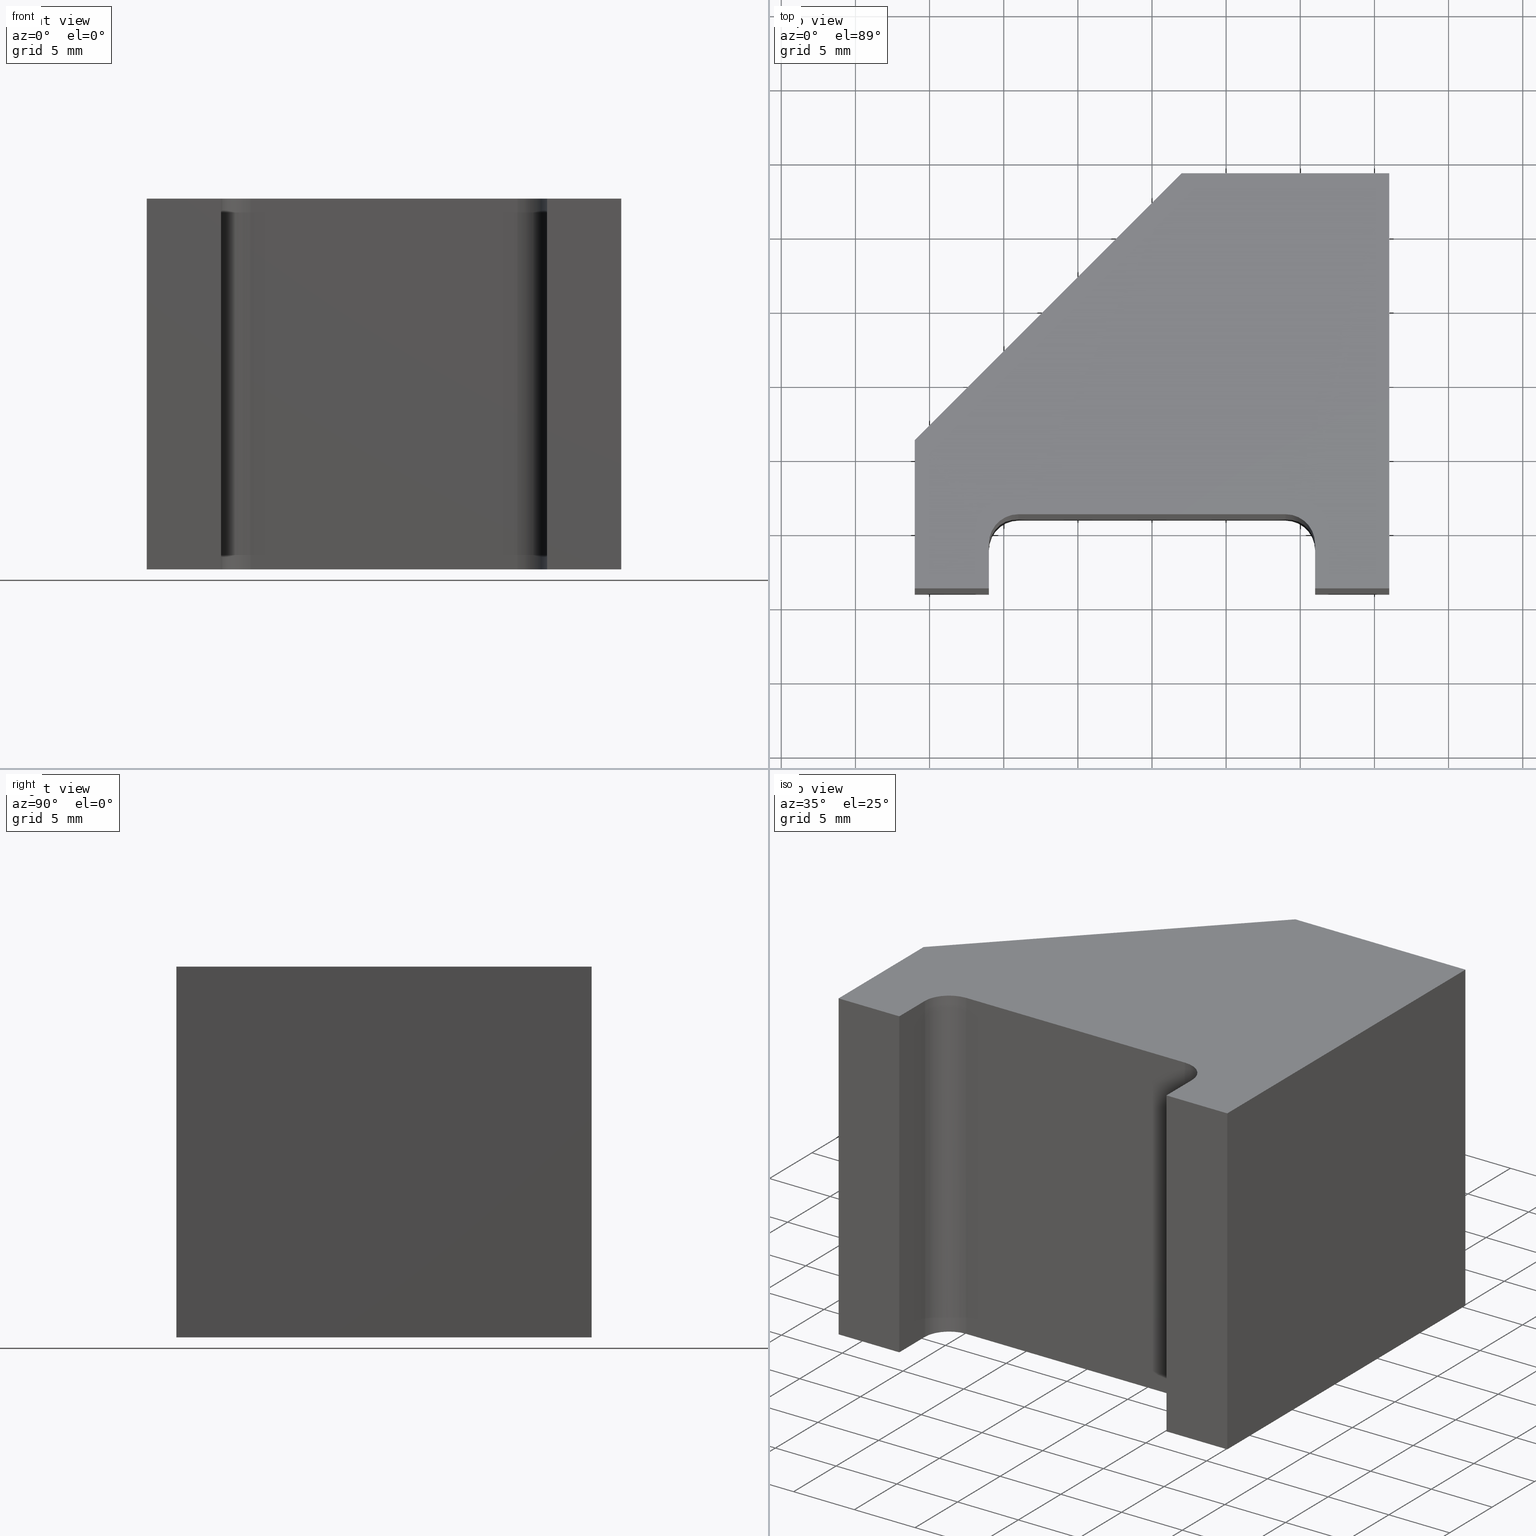
[diagram: canonical four-view strip — front | top / right | iso, engineering-drawing reading convention]
A machine part, canonical four-view strip (front | top / right | iso — engineering-drawing reading convention). The complete STEP part file that produces these views, byte-faithful:
ISO-10303-21;
HEADER;
/* Generated by software containing ST-Developer
 * from STEP Tools, Inc. (www.steptools.com) 
 */

FILE_DESCRIPTION(
/* description */ (''),
/* implementation_level */ '2;1');

FILE_NAME(
/* name */ 'E_3_01_06_06_00_WKZ-0163.stp',
/* time_stamp */ '2025-11-24T12:36:09+01:00',
/* author */ ('d.fischer'),
/* organization */ (''),
/* preprocessor_version */ 'ST-DEVELOPER v20',
/* originating_system */ 'Autodesk Inventor 2025',
/* authorisation */ '');

FILE_SCHEMA (('AUTOMOTIVE_DESIGN { 1 0 10303 214 3 1 1 }'));
ENDSEC;

DATA;
#10=MECHANICAL_DESIGN_GEOMETRIC_PRESENTATION_REPRESENTATION('',(#14,#15),
#428);
#11=SHAPE_REPRESENTATION_RELATIONSHIP('SRR','None',#435,#12);
#12=ADVANCED_BREP_SHAPE_REPRESENTATION('',(#13),#427);
#13=MANIFOLD_SOLID_BREP('Volumenk\X\F6rper1',#251);
#14=STYLED_ITEM('',(#445),#249);
#15=STYLED_ITEM('',(#444),#13);
#16=CYLINDRICAL_SURFACE('',#278,2.);
#17=CYLINDRICAL_SURFACE('',#281,2.);
#18=FACE_OUTER_BOUND('',#31,.T.);
#19=FACE_OUTER_BOUND('',#32,.T.);
#20=FACE_OUTER_BOUND('',#33,.T.);
#21=FACE_OUTER_BOUND('',#34,.T.);
#22=FACE_OUTER_BOUND('',#35,.T.);
#23=FACE_OUTER_BOUND('',#36,.T.);
#24=FACE_OUTER_BOUND('',#37,.T.);
#25=FACE_OUTER_BOUND('',#38,.T.);
#26=FACE_OUTER_BOUND('',#39,.T.);
#27=FACE_OUTER_BOUND('',#40,.T.);
#28=FACE_OUTER_BOUND('',#41,.T.);
#29=FACE_OUTER_BOUND('',#42,.T.);
#30=FACE_OUTER_BOUND('',#43,.T.);
#31=EDGE_LOOP('',(#161,#162,#163,#164,#165,#166,#167,#168,#169,#170,#171));
#32=EDGE_LOOP('',(#172,#173,#174,#175));
#33=EDGE_LOOP('',(#176,#177,#178,#179));
#34=EDGE_LOOP('',(#180,#181,#182,#183));
#35=EDGE_LOOP('',(#184,#185,#186,#187));
#36=EDGE_LOOP('',(#188,#189,#190,#191));
#37=EDGE_LOOP('',(#192,#193,#194,#195));
#38=EDGE_LOOP('',(#196,#197,#198,#199));
#39=EDGE_LOOP('',(#200,#201,#202,#203));
#40=EDGE_LOOP('',(#204,#205,#206,#207));
#41=EDGE_LOOP('',(#208,#209,#210,#211));
#42=EDGE_LOOP('',(#212,#213,#214,#215));
#43=EDGE_LOOP('',(#216,#217,#218,#219,#220,#221,#222,#223,#224,#225,#226));
#44=CIRCLE('',#275,2.);
#45=CIRCLE('',#276,2.);
#46=CIRCLE('',#279,2.);
#47=CIRCLE('',#282,2.);
#48=LINE('',#360,#77);
#49=LINE('',#362,#78);
#50=LINE('',#364,#79);
#51=LINE('',#368,#80);
#52=LINE('',#372,#81);
#53=LINE('',#374,#82);
#54=LINE('',#376,#83);
#55=LINE('',#378,#84);
#56=LINE('',#379,#85);
#57=LINE('',#383,#86);
#58=LINE('',#384,#87);
#59=LINE('',#385,#88);
#60=LINE('',#389,#89);
#61=LINE('',#392,#90);
#62=LINE('',#393,#91);
#63=LINE('',#397,#92);
#64=LINE('',#400,#93);
#65=LINE('',#401,#94);
#66=LINE('',#404,#95);
#67=LINE('',#405,#96);
#68=LINE('',#408,#97);
#69=LINE('',#409,#98);
#70=LINE('',#412,#99);
#71=LINE('',#413,#100);
#72=LINE('',#416,#101);
#73=LINE('',#417,#102);
#74=LINE('',#420,#103);
#75=LINE('',#421,#104);
#76=LINE('',#423,#105);
#77=VECTOR('',#295,10.);
#78=VECTOR('',#296,10.);
#79=VECTOR('',#297,10.);
#80=VECTOR('',#300,10.);
#81=VECTOR('',#303,10.);
#82=VECTOR('',#304,10.);
#83=VECTOR('',#305,10.);
#84=VECTOR('',#306,10.);
#85=VECTOR('',#307,10.);
#86=VECTOR('',#310,10.);
#87=VECTOR('',#311,10.);
#88=VECTOR('',#312,10.);
#89=VECTOR('',#317,10.);
#90=VECTOR('',#320,10.);
#91=VECTOR('',#321,10.);
#92=VECTOR('',#326,10.);
#93=VECTOR('',#329,10.);
#94=VECTOR('',#330,10.);
#95=VECTOR('',#333,10.);
#96=VECTOR('',#334,10.);
#97=VECTOR('',#337,10.);
#98=VECTOR('',#338,10.);
#99=VECTOR('',#341,10.);
#100=VECTOR('',#342,10.);
#101=VECTOR('',#345,10.);
#102=VECTOR('',#346,10.);
#103=VECTOR('',#349,10.);
#104=VECTOR('',#350,10.);
#105=VECTOR('',#353,10.);
#106=VERTEX_POINT('',#358);
#107=VERTEX_POINT('',#359);
#108=VERTEX_POINT('',#361);
#109=VERTEX_POINT('',#363);
#110=VERTEX_POINT('',#365);
#111=VERTEX_POINT('',#367);
#112=VERTEX_POINT('',#369);
#113=VERTEX_POINT('',#371);
#114=VERTEX_POINT('',#373);
#115=VERTEX_POINT('',#375);
#116=VERTEX_POINT('',#377);
#117=VERTEX_POINT('',#381);
#118=VERTEX_POINT('',#382);
#119=VERTEX_POINT('',#387);
#120=VERTEX_POINT('',#391);
#121=VERTEX_POINT('',#395);
#122=VERTEX_POINT('',#399);
#123=VERTEX_POINT('',#403);
#124=VERTEX_POINT('',#407);
#125=VERTEX_POINT('',#411);
#126=VERTEX_POINT('',#415);
#127=VERTEX_POINT('',#419);
#128=EDGE_CURVE('',#106,#107,#48,.T.);
#129=EDGE_CURVE('',#108,#106,#49,.T.);
#130=EDGE_CURVE('',#109,#108,#50,.T.);
#131=EDGE_CURVE('',#110,#109,#44,.T.);
#132=EDGE_CURVE('',#111,#110,#51,.T.);
#133=EDGE_CURVE('',#112,#111,#45,.T.);
#134=EDGE_CURVE('',#113,#112,#52,.T.);
#135=EDGE_CURVE('',#114,#113,#53,.T.);
#136=EDGE_CURVE('',#115,#114,#54,.T.);
#137=EDGE_CURVE('',#116,#115,#55,.T.);
#138=EDGE_CURVE('',#107,#116,#56,.T.);
#139=EDGE_CURVE('',#117,#118,#57,.T.);
#140=EDGE_CURVE('',#118,#109,#58,.T.);
#141=EDGE_CURVE('',#117,#108,#59,.T.);
#142=EDGE_CURVE('',#118,#119,#46,.T.);
#143=EDGE_CURVE('',#119,#110,#60,.T.);
#144=EDGE_CURVE('',#119,#120,#61,.T.);
#145=EDGE_CURVE('',#120,#111,#62,.T.);
#146=EDGE_CURVE('',#120,#121,#47,.T.);
#147=EDGE_CURVE('',#121,#112,#63,.T.);
#148=EDGE_CURVE('',#121,#122,#64,.T.);
#149=EDGE_CURVE('',#122,#113,#65,.T.);
#150=EDGE_CURVE('',#122,#123,#66,.T.);
#151=EDGE_CURVE('',#123,#114,#67,.T.);
#152=EDGE_CURVE('',#123,#124,#68,.T.);
#153=EDGE_CURVE('',#124,#115,#69,.T.);
#154=EDGE_CURVE('',#124,#125,#70,.T.);
#155=EDGE_CURVE('',#125,#116,#71,.T.);
#156=EDGE_CURVE('',#125,#126,#72,.T.);
#157=EDGE_CURVE('',#126,#107,#73,.T.);
#158=EDGE_CURVE('',#126,#127,#74,.T.);
#159=EDGE_CURVE('',#106,#127,#75,.T.);
#160=EDGE_CURVE('',#127,#117,#76,.T.);
#161=ORIENTED_EDGE('',*,*,#128,.F.);
#162=ORIENTED_EDGE('',*,*,#129,.F.);
#163=ORIENTED_EDGE('',*,*,#130,.F.);
#164=ORIENTED_EDGE('',*,*,#131,.F.);
#165=ORIENTED_EDGE('',*,*,#132,.F.);
#166=ORIENTED_EDGE('',*,*,#133,.F.);
#167=ORIENTED_EDGE('',*,*,#134,.F.);
#168=ORIENTED_EDGE('',*,*,#135,.F.);
#169=ORIENTED_EDGE('',*,*,#136,.F.);
#170=ORIENTED_EDGE('',*,*,#137,.F.);
#171=ORIENTED_EDGE('',*,*,#138,.F.);
#172=ORIENTED_EDGE('',*,*,#139,.T.);
#173=ORIENTED_EDGE('',*,*,#140,.T.);
#174=ORIENTED_EDGE('',*,*,#130,.T.);
#175=ORIENTED_EDGE('',*,*,#141,.F.);
#176=ORIENTED_EDGE('',*,*,#142,.T.);
#177=ORIENTED_EDGE('',*,*,#143,.T.);
#178=ORIENTED_EDGE('',*,*,#131,.T.);
#179=ORIENTED_EDGE('',*,*,#140,.F.);
#180=ORIENTED_EDGE('',*,*,#144,.T.);
#181=ORIENTED_EDGE('',*,*,#145,.T.);
#182=ORIENTED_EDGE('',*,*,#132,.T.);
#183=ORIENTED_EDGE('',*,*,#143,.F.);
#184=ORIENTED_EDGE('',*,*,#146,.T.);
#185=ORIENTED_EDGE('',*,*,#147,.T.);
#186=ORIENTED_EDGE('',*,*,#133,.T.);
#187=ORIENTED_EDGE('',*,*,#145,.F.);
#188=ORIENTED_EDGE('',*,*,#148,.T.);
#189=ORIENTED_EDGE('',*,*,#149,.T.);
#190=ORIENTED_EDGE('',*,*,#134,.T.);
#191=ORIENTED_EDGE('',*,*,#147,.F.);
#192=ORIENTED_EDGE('',*,*,#150,.T.);
#193=ORIENTED_EDGE('',*,*,#151,.T.);
#194=ORIENTED_EDGE('',*,*,#135,.T.);
#195=ORIENTED_EDGE('',*,*,#149,.F.);
#196=ORIENTED_EDGE('',*,*,#152,.T.);
#197=ORIENTED_EDGE('',*,*,#153,.T.);
#198=ORIENTED_EDGE('',*,*,#136,.T.);
#199=ORIENTED_EDGE('',*,*,#151,.F.);
#200=ORIENTED_EDGE('',*,*,#154,.T.);
#201=ORIENTED_EDGE('',*,*,#155,.T.);
#202=ORIENTED_EDGE('',*,*,#137,.T.);
#203=ORIENTED_EDGE('',*,*,#153,.F.);
#204=ORIENTED_EDGE('',*,*,#156,.T.);
#205=ORIENTED_EDGE('',*,*,#157,.T.);
#206=ORIENTED_EDGE('',*,*,#138,.T.);
#207=ORIENTED_EDGE('',*,*,#155,.F.);
#208=ORIENTED_EDGE('',*,*,#158,.T.);
#209=ORIENTED_EDGE('',*,*,#159,.F.);
#210=ORIENTED_EDGE('',*,*,#128,.T.);
#211=ORIENTED_EDGE('',*,*,#157,.F.);
#212=ORIENTED_EDGE('',*,*,#160,.T.);
#213=ORIENTED_EDGE('',*,*,#141,.T.);
#214=ORIENTED_EDGE('',*,*,#129,.T.);
#215=ORIENTED_EDGE('',*,*,#159,.T.);
#216=ORIENTED_EDGE('',*,*,#139,.F.);
#217=ORIENTED_EDGE('',*,*,#160,.F.);
#218=ORIENTED_EDGE('',*,*,#158,.F.);
#219=ORIENTED_EDGE('',*,*,#156,.F.);
#220=ORIENTED_EDGE('',*,*,#154,.F.);
#221=ORIENTED_EDGE('',*,*,#152,.F.);
#222=ORIENTED_EDGE('',*,*,#150,.F.);
#223=ORIENTED_EDGE('',*,*,#148,.F.);
#224=ORIENTED_EDGE('',*,*,#146,.F.);
#225=ORIENTED_EDGE('',*,*,#144,.F.);
#226=ORIENTED_EDGE('',*,*,#142,.F.);
#227=PLANE('',#274);
#228=PLANE('',#277);
#229=PLANE('',#280);
#230=PLANE('',#283);
#231=PLANE('',#284);
#232=PLANE('',#285);
#233=PLANE('',#286);
#234=PLANE('',#287);
#235=PLANE('',#288);
#236=PLANE('',#289);
#237=PLANE('',#290);
#238=ADVANCED_FACE('',(#18),#227,.F.);
#239=ADVANCED_FACE('',(#19),#228,.T.);
#240=ADVANCED_FACE('',(#20),#16,.F.);
#241=ADVANCED_FACE('',(#21),#229,.T.);
#242=ADVANCED_FACE('',(#22),#17,.F.);
#243=ADVANCED_FACE('',(#23),#230,.T.);
#244=ADVANCED_FACE('',(#24),#231,.T.);
#245=ADVANCED_FACE('',(#25),#232,.T.);
#246=ADVANCED_FACE('',(#26),#233,.T.);
#247=ADVANCED_FACE('',(#27),#234,.T.);
#248=ADVANCED_FACE('',(#28),#235,.T.);
#249=ADVANCED_FACE('',(#29),#236,.T.);
#250=ADVANCED_FACE('',(#30),#237,.T.);
#251=CLOSED_SHELL('',(#238,#239,#240,#241,#242,#243,#244,#245,#246,#247,
#248,#249,#250));
#252=DERIVED_UNIT_ELEMENT(#255,1.);
#253=DERIVED_UNIT_ELEMENT(#430,-3.);
#254=DIMENSIONAL_EXPONENTS(0.,1.,0.,0.,0.,0.,0.);
#255=(
CONVERSION_BASED_UNIT('gram',#257)
MASS_UNIT()
NAMED_UNIT(#254)
);
#256=(
MASS_UNIT()
NAMED_UNIT(*)
SI_UNIT(.KILO.,.GRAM.)
);
#257=MASS_MEASURE_WITH_UNIT(MASS_MEASURE(0.001),#256);
#258=DERIVED_UNIT((#252,#253));
#259=MEASURE_REPRESENTATION_ITEM('density measure',
POSITIVE_RATIO_MEASURE(8.03),#258);
#260=PROPERTY_DEFINITION_REPRESENTATION(#265,#262);
#261=PROPERTY_DEFINITION_REPRESENTATION(#266,#263);
#262=REPRESENTATION('material name',(#264),#427);
#263=REPRESENTATION('density',(#259),#427);
#264=DESCRIPTIVE_REPRESENTATION_ITEM('1.4301','1.4301');
#265=PROPERTY_DEFINITION('material property','material name',#437);
#266=PROPERTY_DEFINITION('material property','density of part',#437);
#267=DATE_TIME_ROLE('creation_date');
#268=APPLIED_DATE_AND_TIME_ASSIGNMENT(#269,#267,(#437));
#269=DATE_AND_TIME(#270,#271);
#270=CALENDAR_DATE(2011,19,10);
#271=LOCAL_TIME(0,0,0.,#272);
#272=COORDINATED_UNIVERSAL_TIME_OFFSET(0,0,.BEHIND.);
#273=AXIS2_PLACEMENT_3D('',#356,#291,#292);
#274=AXIS2_PLACEMENT_3D('',#357,#293,#294);
#275=AXIS2_PLACEMENT_3D('',#366,#298,#299);
#276=AXIS2_PLACEMENT_3D('',#370,#301,#302);
#277=AXIS2_PLACEMENT_3D('',#380,#308,#309);
#278=AXIS2_PLACEMENT_3D('',#386,#313,#314);
#279=AXIS2_PLACEMENT_3D('',#388,#315,#316);
#280=AXIS2_PLACEMENT_3D('',#390,#318,#319);
#281=AXIS2_PLACEMENT_3D('',#394,#322,#323);
#282=AXIS2_PLACEMENT_3D('',#396,#324,#325);
#283=AXIS2_PLACEMENT_3D('',#398,#327,#328);
#284=AXIS2_PLACEMENT_3D('',#402,#331,#332);
#285=AXIS2_PLACEMENT_3D('',#406,#335,#336);
#286=AXIS2_PLACEMENT_3D('',#410,#339,#340);
#287=AXIS2_PLACEMENT_3D('',#414,#343,#344);
#288=AXIS2_PLACEMENT_3D('',#418,#347,#348);
#289=AXIS2_PLACEMENT_3D('',#422,#351,#352);
#290=AXIS2_PLACEMENT_3D('',#424,#354,#355);
#291=DIRECTION('axis',(0.,0.,1.));
#292=DIRECTION('refdir',(1.,0.,0.));
#293=DIRECTION('center_axis',(0.,0.,1.));
#294=DIRECTION('ref_axis',(1.,0.,0.));
#295=DIRECTION('',(1.58603289232165E-16,1.,0.));
#296=DIRECTION('',(1.,-4.44089209850062E-16,0.));
#297=DIRECTION('',(0.,-1.,0.));
#298=DIRECTION('center_axis',(0.,0.,-1.));
#299=DIRECTION('ref_axis',(1.,0.,0.));
#300=DIRECTION('',(1.,0.,0.));
#301=DIRECTION('center_axis',(0.,0.,-1.));
#302=DIRECTION('ref_axis',(1.11022302462516E-15,1.,0.));
#303=DIRECTION('',(0.,1.,0.));
#304=DIRECTION('',(1.,0.,0.));
#305=DIRECTION('',(-4.44089209850063E-16,-1.,0.));
#306=DIRECTION('',(-0.707106781186548,-0.707106781186547,0.));
#307=DIRECTION('',(-1.,3.1720657846433E-16,0.));
#308=DIRECTION('center_axis',(-1.,0.,0.));
#309=DIRECTION('ref_axis',(0.,0.,1.));
#310=DIRECTION('',(0.,1.,0.));
#311=DIRECTION('',(0.,0.,-1.));
#312=DIRECTION('',(0.,0.,-1.));
#313=DIRECTION('center_axis',(0.,0.,1.));
#314=DIRECTION('ref_axis',(1.,0.,0.));
#315=DIRECTION('center_axis',(0.,0.,1.));
#316=DIRECTION('ref_axis',(1.,0.,0.));
#317=DIRECTION('',(0.,0.,-1.));
#318=DIRECTION('center_axis',(0.,-1.,0.));
#319=DIRECTION('ref_axis',(0.,0.,-1.));
#320=DIRECTION('',(-1.,0.,0.));
#321=DIRECTION('',(0.,0.,-1.));
#322=DIRECTION('center_axis',(0.,0.,1.));
#323=DIRECTION('ref_axis',(1.11022302462516E-15,1.,0.));
#324=DIRECTION('center_axis',(0.,0.,1.));
#325=DIRECTION('ref_axis',(1.11022302462516E-15,1.,0.));
#326=DIRECTION('',(0.,0.,-1.));
#327=DIRECTION('center_axis',(1.,0.,0.));
#328=DIRECTION('ref_axis',(0.,0.,-1.));
#329=DIRECTION('',(0.,-1.,0.));
#330=DIRECTION('',(0.,0.,-1.));
#331=DIRECTION('center_axis',(0.,-1.,0.));
#332=DIRECTION('ref_axis',(0.,0.,-1.));
#333=DIRECTION('',(-1.,0.,0.));
#334=DIRECTION('',(0.,0.,-1.));
#335=DIRECTION('center_axis',(-1.,4.44089209850063E-16,0.));
#336=DIRECTION('ref_axis',(0.,0.,1.));
#337=DIRECTION('',(4.44089209850063E-16,1.,0.));
#338=DIRECTION('',(0.,0.,-1.));
#339=DIRECTION('center_axis',(-0.707106781186547,0.707106781186548,0.));
#340=DIRECTION('ref_axis',(0.,0.,1.));
#341=DIRECTION('',(0.707106781186548,0.707106781186547,0.));
#342=DIRECTION('',(0.,0.,-1.));
#343=DIRECTION('center_axis',(3.1720657846433E-16,1.,0.));
#344=DIRECTION('ref_axis',(0.,0.,1.));
#345=DIRECTION('',(1.,-3.1720657846433E-16,0.));
#346=DIRECTION('',(0.,0.,-1.));
#347=DIRECTION('center_axis',(1.,-1.58603289232165E-16,0.));
#348=DIRECTION('ref_axis',(0.,0.,-1.));
#349=DIRECTION('',(-1.58603289232165E-16,-1.,0.));
#350=DIRECTION('',(0.,0.,1.));
#351=DIRECTION('center_axis',(-4.44089209850062E-16,-1.,0.));
#352=DIRECTION('ref_axis',(0.,0.,-1.));
#353=DIRECTION('',(-1.,4.44089209850062E-16,0.));
#354=DIRECTION('center_axis',(0.,0.,1.));
#355=DIRECTION('ref_axis',(1.,0.,0.));
#356=CARTESIAN_POINT('',(0.,0.,0.));
#357=CARTESIAN_POINT('Origin',(2.00281157643988,-1.74119706031455,-12.5));
#358=CARTESIAN_POINT('',(16.,-14.,-12.5));
#359=CARTESIAN_POINT('',(16.,14.,-12.5));
#360=CARTESIAN_POINT('',(16.,14.,-12.5));
#361=CARTESIAN_POINT('',(11.,-14.,-12.5));
#362=CARTESIAN_POINT('',(16.,-14.,-12.5));
#363=CARTESIAN_POINT('',(11.,-11.,-12.5));
#364=CARTESIAN_POINT('',(11.,-14.,-12.5));
#365=CARTESIAN_POINT('',(9.,-9.,-12.5));
#366=CARTESIAN_POINT('Origin',(9.,-11.,-12.5));
#367=CARTESIAN_POINT('',(-9.,-9.,-12.5));
#368=CARTESIAN_POINT('',(9.,-9.,-12.5));
#369=CARTESIAN_POINT('',(-11.,-11.,-12.5));
#370=CARTESIAN_POINT('Origin',(-9.,-11.,-12.5));
#371=CARTESIAN_POINT('',(-11.,-14.,-12.5));
#372=CARTESIAN_POINT('',(-11.,-11.,-12.5));
#373=CARTESIAN_POINT('',(-16.,-14.,-12.5));
#374=CARTESIAN_POINT('',(-11.,-14.,-12.5));
#375=CARTESIAN_POINT('',(-16.,-4.,-12.5));
#376=CARTESIAN_POINT('',(-16.,-14.,-12.5));
#377=CARTESIAN_POINT('',(2.00000000000001,14.,-12.5));
#378=CARTESIAN_POINT('',(-16.,-4.,-12.5));
#379=CARTESIAN_POINT('',(2.00000000000001,14.,-12.5));
#380=CARTESIAN_POINT('Origin',(11.,-14.,0.));
#381=CARTESIAN_POINT('',(11.,-14.,12.5));
#382=CARTESIAN_POINT('',(11.,-11.,12.5));
#383=CARTESIAN_POINT('',(11.,-14.,12.5));
#384=CARTESIAN_POINT('',(11.,-11.,0.));
#385=CARTESIAN_POINT('',(11.,-14.,0.));
#386=CARTESIAN_POINT('Origin',(9.,-11.,0.));
#387=CARTESIAN_POINT('',(9.,-9.,12.5));
#388=CARTESIAN_POINT('Origin',(9.,-11.,12.5));
#389=CARTESIAN_POINT('',(9.,-9.,0.));
#390=CARTESIAN_POINT('Origin',(9.,-9.,0.));
#391=CARTESIAN_POINT('',(-9.,-9.,12.5));
#392=CARTESIAN_POINT('',(9.,-9.,12.5));
#393=CARTESIAN_POINT('',(-9.,-9.,0.));
#394=CARTESIAN_POINT('Origin',(-9.,-11.,0.));
#395=CARTESIAN_POINT('',(-11.,-11.,12.5));
#396=CARTESIAN_POINT('Origin',(-9.,-11.,12.5));
#397=CARTESIAN_POINT('',(-11.,-11.,0.));
#398=CARTESIAN_POINT('Origin',(-11.,-11.,0.));
#399=CARTESIAN_POINT('',(-11.,-14.,12.5));
#400=CARTESIAN_POINT('',(-11.,-11.,12.5));
#401=CARTESIAN_POINT('',(-11.,-14.,0.));
#402=CARTESIAN_POINT('Origin',(-11.,-14.,0.));
#403=CARTESIAN_POINT('',(-16.,-14.,12.5));
#404=CARTESIAN_POINT('',(-11.,-14.,12.5));
#405=CARTESIAN_POINT('',(-16.,-14.,0.));
#406=CARTESIAN_POINT('Origin',(-16.,-14.,0.));
#407=CARTESIAN_POINT('',(-16.,-4.,12.5));
#408=CARTESIAN_POINT('',(-16.,-14.,12.5));
#409=CARTESIAN_POINT('',(-16.,-4.,0.));
#410=CARTESIAN_POINT('Origin',(-16.,-4.,0.));
#411=CARTESIAN_POINT('',(2.00000000000001,14.,12.5));
#412=CARTESIAN_POINT('',(-16.,-4.,12.5));
#413=CARTESIAN_POINT('',(2.00000000000001,14.,0.));
#414=CARTESIAN_POINT('Origin',(2.00000000000001,14.,0.));
#415=CARTESIAN_POINT('',(16.,14.,12.5));
#416=CARTESIAN_POINT('',(2.00000000000001,14.,12.5));
#417=CARTESIAN_POINT('',(16.,14.,0.));
#418=CARTESIAN_POINT('Origin',(16.,14.,0.));
#419=CARTESIAN_POINT('',(16.,-14.,12.5));
#420=CARTESIAN_POINT('',(16.,14.,12.5));
#421=CARTESIAN_POINT('',(16.,-14.,0.));
#422=CARTESIAN_POINT('Origin',(16.,-14.,0.));
#423=CARTESIAN_POINT('',(16.,-14.,12.5));
#424=CARTESIAN_POINT('Origin',(2.00281157643988,-1.74119706031455,12.5));
#425=UNCERTAINTY_MEASURE_WITH_UNIT(LENGTH_MEASURE(0.01),#429,
'DISTANCE_ACCURACY_VALUE',
'Maximum model space distance between geometric entities at asserted c
onnectivities');
#426=UNCERTAINTY_MEASURE_WITH_UNIT(LENGTH_MEASURE(0.01),#429,
'DISTANCE_ACCURACY_VALUE',
'Maximum model space distance between geometric entities at asserted c
onnectivities');
#427=(
GEOMETRIC_REPRESENTATION_CONTEXT(3)
GLOBAL_UNCERTAINTY_ASSIGNED_CONTEXT((#425))
GLOBAL_UNIT_ASSIGNED_CONTEXT((#429,#431,#432))
REPRESENTATION_CONTEXT('','3D')
);
#428=(
GEOMETRIC_REPRESENTATION_CONTEXT(3)
GLOBAL_UNCERTAINTY_ASSIGNED_CONTEXT((#426))
GLOBAL_UNIT_ASSIGNED_CONTEXT((#429,#431,#432))
REPRESENTATION_CONTEXT('','3D')
);
#429=(
LENGTH_UNIT()
NAMED_UNIT(*)
SI_UNIT(.MILLI.,.METRE.)
);
#430=(
LENGTH_UNIT()
NAMED_UNIT(*)
SI_UNIT(.CENTI.,.METRE.)
);
#431=(
NAMED_UNIT(*)
PLANE_ANGLE_UNIT()
SI_UNIT($,.RADIAN.)
);
#432=(
NAMED_UNIT(*)
SI_UNIT($,.STERADIAN.)
SOLID_ANGLE_UNIT()
);
#433=SHAPE_DEFINITION_REPRESENTATION(#434,#435);
#434=PRODUCT_DEFINITION_SHAPE('',$,#437);
#435=SHAPE_REPRESENTATION('',(#273),#427);
#436=PRODUCT_DEFINITION_CONTEXT('part definition',#441,'design');
#437=PRODUCT_DEFINITION('WKZ-0163','E_3_01_06_06_00_WKZ-0163',#438,#436);
#438=PRODUCT_DEFINITION_FORMATION('',$,#443);
#439=PRODUCT_RELATED_PRODUCT_CATEGORY('E_3_01_06_06_00_WKZ-0163',
'E_3_01_06_06_00_WKZ-0163',(#443));
#440=APPLICATION_PROTOCOL_DEFINITION('international standard',
'automotive_design',2009,#441);
#441=APPLICATION_CONTEXT(
'Core Data for Automotive Mechanical Design Process');
#442=PRODUCT_CONTEXT('part definition',#441,'mechanical');
#443=PRODUCT('WKZ-0163','E_3_01_06_06_00_WKZ-0163',$,(#442));
#444=PRESENTATION_STYLE_ASSIGNMENT((#446));
#445=PRESENTATION_STYLE_ASSIGNMENT((#447));
#446=SURFACE_STYLE_USAGE(.BOTH.,#450);
#447=SURFACE_STYLE_USAGE(.BOTH.,#451);
#448=SURFACE_STYLE_RENDERING_WITH_PROPERTIES($,#458,(#449));
#449=SURFACE_STYLE_TRANSPARENT(0.);
#450=SURFACE_SIDE_STYLE('',(#452,#448));
#451=SURFACE_SIDE_STYLE('',(#453));
#452=SURFACE_STYLE_FILL_AREA(#454);
#453=SURFACE_STYLE_FILL_AREA(#455);
#454=FILL_AREA_STYLE('',(#456));
#455=FILL_AREA_STYLE('',(#457));
#456=FILL_AREA_STYLE_COLOUR('',#458);
#457=FILL_AREA_STYLE_COLOUR('',#459);
#458=COLOUR_RGB('',0.92156862745098,0.92156862745098,0.92156862745098);
#459=COLOUR_RGB('',0.16078431372549,0.16078431372549,0.16078431372549);
ENDSEC;
END-ISO-10303-21;
